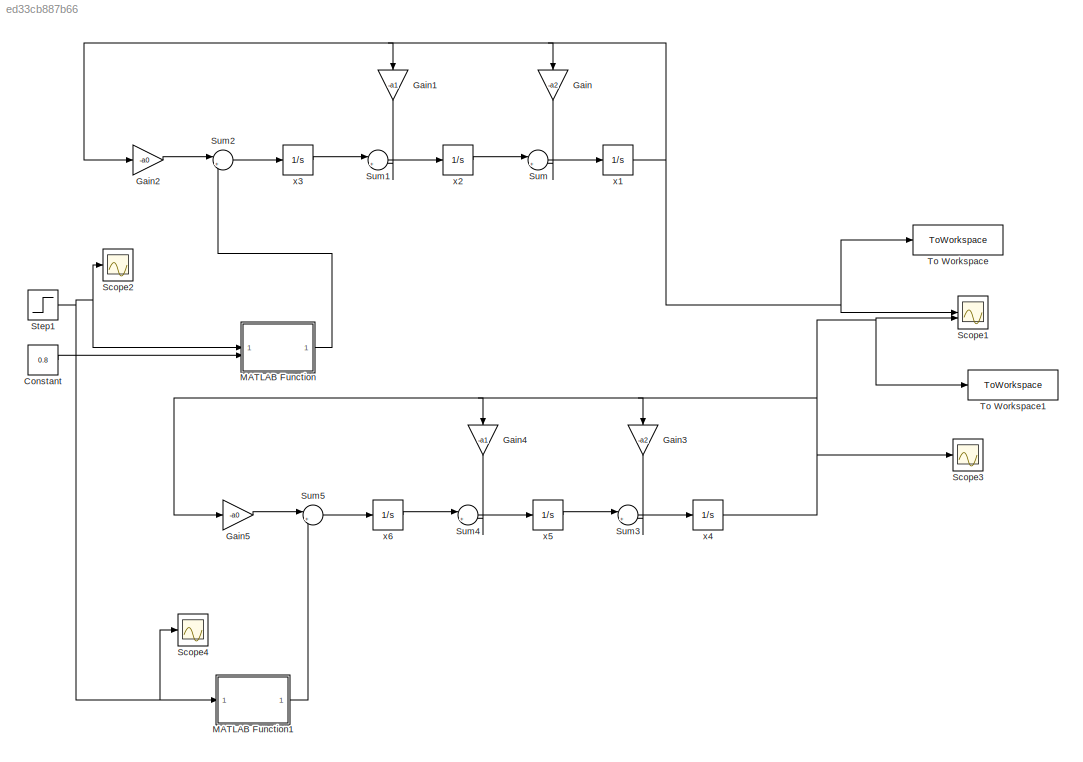
MODEL slx_ed33cb887b66
KIND model
CONFIG AbsTol = auto
CONFIG EnableMultiTasking = off
CONFIG FixedStep = auto
CONFIG MaxStep = auto
CONFIG MinStep = auto
CONFIG RelTol = 1e-3
CONFIG SampleTimeConstraint = Unconstrained
CONFIG SolverName = VariableStepAuto
CONFIG StartTime = 0.0
CONFIG StopTime = 200
BLOCK [Constant] Constant
  Value = 0.8
BLOCK [Gain] Gain
  Gain = -a2
  NameLocation = left
BLOCK [Gain] Gain1
  Gain = -a1
  NameLocation = left
BLOCK [Gain] Gain2
  Gain = -a0
BLOCK [Gain] Gain3
  Gain = -a2
  NameLocation = left
BLOCK [Gain] Gain4
  Gain = -a1
  NameLocation = left
BLOCK [Gain] Gain5
  Gain = -a0
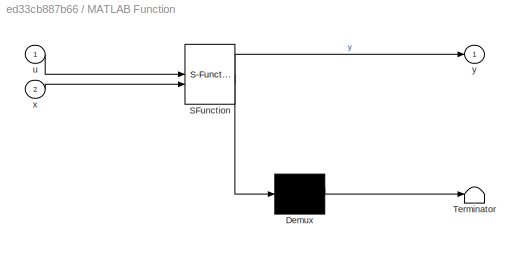
BLOCK [SubSystem] MATLAB Function
  ErrorFcn = Stateflow.Translate.translate
  LibrarySourceBlock = simulink/User-Defined\nFunctions/MATLAB Function
  PermitHierarchicalResolution = ExplicitOnly
  SFBlockType = MATLAB Function
  TreatAsAtomicUnit = on
BLOCK [Demux] MATLAB Function/ Demux 
  Outputs = 1
BLOCK [S-Function] MATLAB Function/ SFunction 
  EnableBusSupport = on
  FunctionName = sf_sfun
  PortCounts = [2 2]
  SFcnIsStateOwnerBlock = off
  SFunctionDeploymentMode = off
  Tag = Stateflow S-Function 2
BLOCK [Terminator] MATLAB Function/ Terminator 
BLOCK [Inport] MATLAB Function/u
BLOCK [Inport] MATLAB Function/x
  Port = 2
BLOCK [Outport] MATLAB Function/y
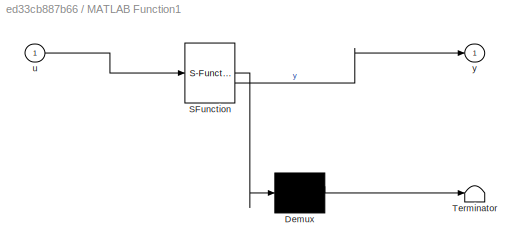
BLOCK [SubSystem] MATLAB Function1
  ErrorFcn = Stateflow.Translate.translate
  LibrarySourceBlock = simulink/User-Defined\nFunctions/MATLAB Function
  PermitHierarchicalResolution = ExplicitOnly
  SFBlockType = MATLAB Function
  TreatAsAtomicUnit = on
BLOCK [Demux] MATLAB Function1/ Demux 
  Outputs = 1
BLOCK [S-Function] MATLAB Function1/ SFunction 
  EnableBusSupport = on
  FunctionName = sf_sfun
  PortCounts = [1 2]
  SFcnIsStateOwnerBlock = off
  SFunctionDeploymentMode = off
  Tag = Stateflow S-Function 1
BLOCK [Terminator] MATLAB Function1/ Terminator 
BLOCK [Inport] MATLAB Function1/u
BLOCK [Outport] MATLAB Function1/y
BLOCK [Scope] Scope1
  Floating = off
  NumInputPorts = 2
  ScopeSpecificationString = Simulink.scopes.TimeScopeBlockCfg('CurrentConfiguration', extmgr.ConfigurationSet(extmgr.Configuration('Core','General UI',true),extmgr.Configuration('Core','Source UI',true),extmgr.Configuration('Sources','WiredSimulink',true,'DataLoggingVariableName','ScopeData1'),extmgr.Configuration('Visuals','Time Domain',true,'SerializedDisplays',{struct('MinYLimReal','-0.44794','MaxYLimReal','4.03142','YLab...<+1366ch>
BLOCK [Scope] Scope2
  Floating = off
  NumInputPorts = 1
  ScopeSpecificationString = Simulink.scopes.TimeScopeBlockCfg('CurrentConfiguration', extmgr.ConfigurationSet(extmgr.Configuration('Core','General UI',true),extmgr.Configuration('Core','Source UI',true),extmgr.Configuration('Sources','WiredSimulink',true),extmgr.Configuration('Visuals','Time Domain',true,'SerializedDisplays',{struct('MinYLimReal','0.9','MaxYLimReal','1.1','YLabelReal','','MinYLimMag','0.9','MaxYLimMag','1.1'...<+1290ch>
BLOCK [Scope] Scope3
  Floating = off
  NumInputPorts = 1
  ScopeSpecificationString = Simulink.scopes.TimeScopeBlockCfg('CurrentConfiguration', extmgr.ConfigurationSet(extmgr.Configuration('Core','General UI',true),extmgr.Configuration('Core','Source UI',true),extmgr.Configuration('Sources','WiredSimulink',true,'DataLoggingVariableName','ScopeData2'),extmgr.Configuration('Visuals','Time Domain',true,'SerializedDisplays',{struct('MinYLimReal','-0.12687','MaxYLimReal','1.1418','YLabe...<+1357ch>
BLOCK [Scope] Scope4
  Floating = off
  NumInputPorts = 1
  ScopeSpecificationString = Simulink.scopes.TimeScopeBlockCfg('CurrentConfiguration', extmgr.ConfigurationSet(extmgr.Configuration('Core','General UI',true),extmgr.Configuration('Core','Source UI',true),extmgr.Configuration('Sources','WiredSimulink',true,'DataLoggingVariableName','ScopeData3'),extmgr.Configuration('Visuals','Time Domain',true,'SerializedDisplays',{struct('MinYLimReal','-1.1875','MaxYLimReal','0.6875','YLabel...<+1358ch>
BLOCK [Step] Step1
  After = 0.9
  Before = -1
  SampleTime = Tp
  Time = 30
BLOCK [Sum] Sum
  Inputs = |++
BLOCK [Sum] Sum1
  Inputs = |++
BLOCK [Sum] Sum2
  Inputs = |++
BLOCK [Sum] Sum3
  Inputs = |++
BLOCK [Sum] Sum4
  Inputs = |++
BLOCK [Sum] Sum5
  Inputs = |++
BLOCK [ToWorkspace] To Workspace
  FixptAsFi = on
  MaxDataPoints = inf
  SampleTime = -1
  SaveFormat = Timeseries
  VariableName = liniowy
BLOCK [ToWorkspace] To Workspace1
  FixptAsFi = on
  MaxDataPoints = inf
  SampleTime = -1
  SaveFormat = Timeseries
  VariableName = nieliniowy
BLOCK [Integrator] x1
BLOCK [Integrator] x2
BLOCK [Integrator] x3
BLOCK [Integrator] x4
BLOCK [Integrator] x5
BLOCK [Integrator] x6
LINE Constant:1 -> MATLAB Function:2
LINE Gain1:1 -> Sum1:2
LINE Gain2:1 -> Sum2:1
LINE Gain3:1 -> Sum3:2
LINE Gain4:1 -> Sum4:2
LINE Gain5:1 -> Sum5:1
LINE Gain:1 -> Sum:2
LINE MATLAB Function1:1 -> Sum5:2
LINE MATLAB Function:1 -> Sum2:2
NET Step1:1 -> MATLAB Function1:1, MATLAB Function:1, Scope2:1, Scope4:1
LINE Sum1:1 -> x2:1
LINE Sum2:1 -> x3:1
LINE Sum3:1 -> x4:1
LINE Sum4:1 -> x5:1
LINE Sum5:1 -> x6:1
LINE Sum:1 -> x1:1
NET x1:1 -> Gain1:1, Gain2:1, Gain:1, Scope1:1, To Workspace:1
LINE x2:1 -> Sum:1
LINE x3:1 -> Sum1:1
NET x4:1 -> Gain3:1, Gain4:1, Gain5:1, Scope1:2, Scope3:1, To Workspace1:1
LINE x5:1 -> Sum3:1
LINE x6:1 -> Sum4:1
note: NET lines group one-source signal fan-out (src -> all destinations, sorted); 1:1 wires keep LINE
CHART MATLAB Function states=1 transitions=1
  STATE_LABEL 'eML_blk_kernel()'
  STATE_LABEL 'SCRIPT:\nfunction y  = fcn(u, x)\nb0 = 0.000897436;\nalfa1 = 1.3;\nalfa2 = 1.1;\nalfa3 = -1.15;\nalfa4 = -0.9;\n\ny = b0*((alfa1*x+alfa2*x^2+alfa3*x^3+alfa4*x^4) + ...\n    (alfa1*2*alfa2*x + 3*alfa3*x^2 + 4*alfa4*x^3) * (u - x));\nend'
CHART MATLAB Function1 states=1 transitions=1
  STATE_LABEL 'eML_blk_kernel()'
  STATE_LABEL 'SCRIPT:\nfunction y = fcn(u)\nb0 = 0.000897436;\nalfa1 = 1.3;\nalfa2 = 1.1;\nalfa3 = -1.15;\nalfa4 = -0.9;\ny = b0*(alfa1*u+alfa2*u^2+alfa3*u^3+alfa4*u^4);\nend\n'
CHART  states=0 transitions=0
CHART  states=0 transitions=0
